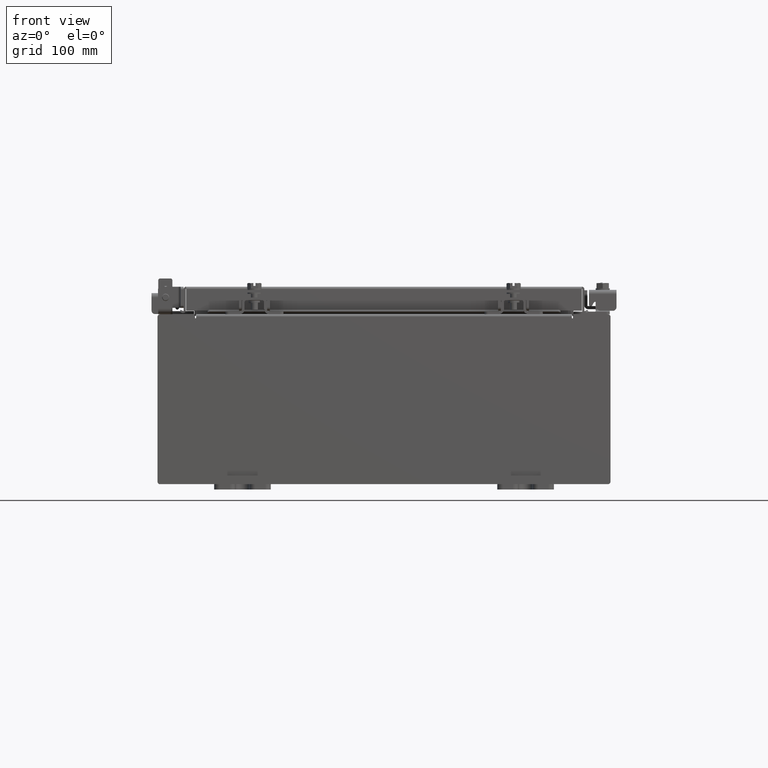
[diagram: clean part render]
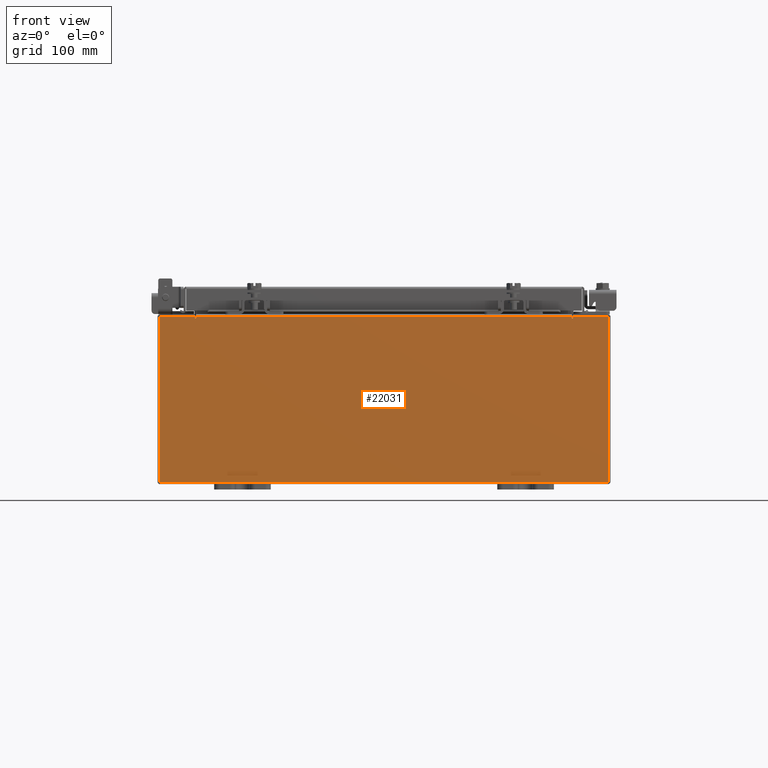
[diagram: same view with one face highlighted and labeled with its STEP entity id]
A machine part, front view. The second image highlights one B-rep face of the part: STEP entity #22031.
In plain terms, the highlighted planar face has unit normal (-0, 1, -0).
Its self-contained STEP definition (entity closure, byte-faithful):
#70 = AXIS2_PLACEMENT_3D ( 'NONE', #19121, #8906, #20836 ) ;
#151 = PLANE ( 'NONE',  #12440 ) ;
#288 = ORIENTED_EDGE ( 'NONE', *, *, #13494, .F. ) ;
#477 = LINE ( 'NONE', #2780, #18034 ) ;
#563 = VECTOR ( 'NONE', #12099, 39.37007874015748100 ) ;
#684 = LINE ( 'NONE', #2499, #5189 ) ;
#843 = CARTESIAN_POINT ( 'NONE',  ( -7.925300000000000000, 0.0000000000000000000, -2.925299999999999600 ) ) ;
#1826 = EDGE_CURVE ( 'NONE', #14434, #13785, #5017, .T. ) ;
#1866 = DIRECTION ( 'NONE',  ( 0.0000000000000000000, -0.0000000000000000000, -1.000000000000000000 ) ) ;
#1984 = LINE ( 'NONE', #13404, #20093 ) ;
#2123 = CARTESIAN_POINT ( 'NONE',  ( 7.925300000000000000, 0.0000000000000000000, 2.925300000000000500 ) ) ;
#2499 = CARTESIAN_POINT ( 'NONE',  ( 7.925300000000000000, 0.0000000000000000000, 2.925300000000000500 ) ) ;
#2593 = EDGE_CURVE ( 'NONE', #4979, #16017, #10806, .T. ) ;
#2687 = CARTESIAN_POINT ( 'NONE',  ( -7.925300000000000000, 0.0000000000000000000, 2.925300000000000500 ) ) ;
#2773 = CARTESIAN_POINT ( 'NONE',  ( -6.674550000000000900, -0.0000000000000000000, 0.0000000000000000000 ) ) ;
#2780 = CARTESIAN_POINT ( 'NONE',  ( 6.637199999999999100, 0.0000000000000000000, 0.0000000000000000000 ) ) ;
#2863 = DIRECTION ( 'NONE',  ( 0.0000000000000000000, 0.0000000000000000000, 1.000000000000000000 ) ) ;
#3045 = VERTEX_POINT ( 'NONE', #2687 ) ;
#3068 = VERTEX_POINT ( 'NONE', #843 ) ;
#3236 = DIRECTION ( 'NONE',  ( -2.170286390200002500E-014, 0.0000000000000000000, -1.000000000000000000 ) ) ;
#3274 = CARTESIAN_POINT ( 'NONE',  ( 6.637199999999997300, 0.0000000000000000000, 2.874950000000000600 ) ) ;
#4182 = CARTESIAN_POINT ( 'NONE',  ( -6.674550000000000900, 0.0000000000000000000, 2.925300000000000500 ) ) ;
#4683 = CARTESIAN_POINT ( 'NONE',  ( -7.925300000000000000, 0.0000000000000000000, 2.925300000000000500 ) ) ;
#4783 = LINE ( 'NONE', #2773, #21854 ) ;
#4895 = DIRECTION ( 'NONE',  ( 1.000000000000000000, 0.0000000000000000000, 0.0000000000000000000 ) ) ;
#4979 = VERTEX_POINT ( 'NONE', #19890 ) ;
#5017 = LINE ( 'NONE', #8752, #9530 ) ;
#5189 = VECTOR ( 'NONE', #14400, 39.37007874015748100 ) ;
#5516 = EDGE_CURVE ( 'NONE', #14434, #16670, #18636, .T. ) ;
#5662 = VECTOR ( 'NONE', #16867, 39.37007874015748100 ) ;
#5778 = ORIENTED_EDGE ( 'NONE', *, *, #19492, .F. ) ;
#5828 = CIRCLE ( 'NONE', #20378, 0.01867500000000003900 ) ;
#6302 = VECTOR ( 'NONE', #4895, 39.37007874015748100 ) ;
#6403 = EDGE_CURVE ( 'NONE', #13785, #11299, #5828, .T. ) ;
#6479 = EDGE_LOOP ( 'NONE', ( #19473, #13979, #11776, #10231, #5778, #288, #7891, #8157, #9848, #15619, #18435, #11787 ) ) ;
#6788 = VERTEX_POINT ( 'NONE', #7084 ) ;
#7084 = CARTESIAN_POINT ( 'NONE',  ( 7.925300000000000000, 0.0000000000000000000, -2.925299999999999600 ) ) ;
#7116 = EDGE_CURVE ( 'NONE', #11299, #21627, #4783, .T. ) ;
#7477 = VECTOR ( 'NONE', #9748, 39.37007874015748100 ) ;
#7626 = VERTEX_POINT ( 'NONE', #19032 ) ;
#7891 = ORIENTED_EDGE ( 'NONE', *, *, #10473, .F. ) ;
#8157 = ORIENTED_EDGE ( 'NONE', *, *, #2593, .T. ) ;
#8288 = DIRECTION ( 'NONE',  ( 0.0000000000000000000, 0.0000000000000000000, -1.000000000000000000 ) ) ;
#8598 = CARTESIAN_POINT ( 'NONE',  ( 0.0000000000000000000, 0.0000000000000000000, 0.0000000000000000000 ) ) ;
#8752 = CARTESIAN_POINT ( 'NONE',  ( -6.637200000000000900, -0.0000000000000000000, 0.0000000000000000000 ) ) ;
#8906 = DIRECTION ( 'NONE',  ( -0.0000000000000000000, 1.000000000000000000, -0.0000000000000000000 ) ) ;
#9530 = VECTOR ( 'NONE', #8288, 39.37007874015748100 ) ;
#9615 = DIRECTION ( 'NONE',  ( -0.0000000000000000000, 1.000000000000000000, -0.0000000000000000000 ) ) ;
#9748 = DIRECTION ( 'NONE',  ( -1.000000000000000000, -0.0000000000000000000, -0.0000000000000000000 ) ) ;
#9848 = ORIENTED_EDGE ( 'NONE', *, *, #20787, .T. ) ;
#10231 = ORIENTED_EDGE ( 'NONE', *, *, #5516, .T. ) ;
#10473 = EDGE_CURVE ( 'NONE', #4979, #7626, #1984, .T. ) ;
#10483 = DIRECTION ( 'NONE',  ( 1.000000000000000000, 0.0000000000000000000, 0.0000000000000000000 ) ) ;
#10806 = LINE ( 'NONE', #4683, #6302 ) ;
#11299 = VERTEX_POINT ( 'NONE', #13373 ) ;
#11776 = ORIENTED_EDGE ( 'NONE', *, *, #1826, .F. ) ;
#11787 = ORIENTED_EDGE ( 'NONE', *, *, #15966, .T. ) ;
#12009 = DIRECTION ( 'NONE',  ( 0.0000000000000000000, -1.000000000000000000, 0.0000000000000000000 ) ) ;
#12019 = CARTESIAN_POINT ( 'NONE',  ( 6.637199999999999100, 0.0000000000000000000, 2.912300000000000600 ) ) ;
#12099 = DIRECTION ( 'NONE',  ( 1.000000000000000000, 0.0000000000000000000, 0.0000000000000000000 ) ) ;
#12208 = CARTESIAN_POINT ( 'NONE',  ( -7.925300000000000000, 0.0000000000000000000, 2.925300000000000500 ) ) ;
#12440 = AXIS2_PLACEMENT_3D ( 'NONE', #8598, #12009, #1866 ) ;
#13104 = FACE_OUTER_BOUND ( 'NONE', #6479, .T. ) ;
#13373 = CARTESIAN_POINT ( 'NONE',  ( -6.674550000000000900, 0.0000000000000000000, 2.874950000000000600 ) ) ;
#13404 = CARTESIAN_POINT ( 'NONE',  ( 6.674549999999936900, -0.0000000000000000000, -1.448568502570928700E-013 ) ) ;
#13494 = EDGE_CURVE ( 'NONE', #7626, #16573, #18233, .T. ) ;
#13785 = VERTEX_POINT ( 'NONE', #21733 ) ;
#13979 = ORIENTED_EDGE ( 'NONE', *, *, #6403, .F. ) ;
#14400 = DIRECTION ( 'NONE',  ( 0.0000000000000000000, 0.0000000000000000000, -1.000000000000000000 ) ) ;
#14434 = VERTEX_POINT ( 'NONE', #19457 ) ;
#15619 = ORIENTED_EDGE ( 'NONE', *, *, #17053, .T. ) ;
#15966 = EDGE_CURVE ( 'NONE', #3045, #21627, #20588, .T. ) ;
#16017 = VERTEX_POINT ( 'NONE', #2123 ) ;
#16034 = VECTOR ( 'NONE', #10483, 39.37007874015748100 ) ;
#16573 = VERTEX_POINT ( 'NONE', #3274 ) ;
#16670 = VERTEX_POINT ( 'NONE', #12019 ) ;
#16867 = DIRECTION ( 'NONE',  ( -0.0000000000000000000, -0.0000000000000000000, 1.000000000000000000 ) ) ;
#17053 = EDGE_CURVE ( 'NONE', #6788, #3068, #20559, .T. ) ;
#18034 = VECTOR ( 'NONE', #2863, 39.37007874015748100 ) ;
#18233 = CIRCLE ( 'NONE', #70, 0.01867500000000003900 ) ;
#18435 = ORIENTED_EDGE ( 'NONE', *, *, #21926, .T. ) ;
#18517 = CARTESIAN_POINT ( 'NONE',  ( -7.925300000000000000, 0.0000000000000000000, 2.925300000000000500 ) ) ;
#18636 = LINE ( 'NONE', #20605, #563 ) ;
#19032 = CARTESIAN_POINT ( 'NONE',  ( 6.674549999999999100, 0.0000000000000000000, 2.874950000000000600 ) ) ;
#19121 = CARTESIAN_POINT ( 'NONE',  ( 6.655874999999998200, 0.0000000000000000000, 2.874950000000000600 ) ) ;
#19457 = CARTESIAN_POINT ( 'NONE',  ( -6.637200000000000900, -1.707404996040164500E-016, 2.912300000000000600 ) ) ;
#19473 = ORIENTED_EDGE ( 'NONE', *, *, #7116, .F. ) ;
#19492 = EDGE_CURVE ( 'NONE', #16573, #16670, #477, .T. ) ;
#19733 = DIRECTION ( 'NONE',  ( 0.0000000000000000000, 0.0000000000000000000, 1.000000000000000000 ) ) ;
#19788 = LINE ( 'NONE', #18517, #5662 ) ;
#19830 = CARTESIAN_POINT ( 'NONE',  ( -6.655875000000000900, 0.0000000000000000000, 2.874950000000000600 ) ) ;
#19890 = CARTESIAN_POINT ( 'NONE',  ( 6.674549999999999100, 0.0000000000000000000, 2.925300000000000500 ) ) ;
#19968 = CARTESIAN_POINT ( 'NONE',  ( -7.925300000000000000, 0.0000000000000000000, -2.925299999999999600 ) ) ;
#20093 = VECTOR ( 'NONE', #3236, 39.37007874015748100 ) ;
#20378 = AXIS2_PLACEMENT_3D ( 'NONE', #19830, #9615, #21580 ) ;
#20559 = LINE ( 'NONE', #19968, #7477 ) ;
#20588 = LINE ( 'NONE', #12208, #16034 ) ;
#20605 = CARTESIAN_POINT ( 'NONE',  ( -6.637200000000000900, -1.707404996040164500E-016, 2.912300000000000600 ) ) ;
#20787 = EDGE_CURVE ( 'NONE', #16017, #6788, #684, .T. ) ;
#20836 = DIRECTION ( 'NONE',  ( 0.0000000000000000000, 0.0000000000000000000, -1.000000000000000000 ) ) ;
#21580 = DIRECTION ( 'NONE',  ( 0.0000000000000000000, 0.0000000000000000000, -1.000000000000000000 ) ) ;
#21627 = VERTEX_POINT ( 'NONE', #4182 ) ;
#21733 = CARTESIAN_POINT ( 'NONE',  ( -6.637200000000000900, -0.0000000000000000000, 2.874950000000000600 ) ) ;
#21854 = VECTOR ( 'NONE', #19733, 39.37007874015748100 ) ;
#21926 = EDGE_CURVE ( 'NONE', #3068, #3045, #19788, .T. ) ;
#22031 = ADVANCED_FACE ( 'NONE', ( #13104 ), #151, .F. ) ;